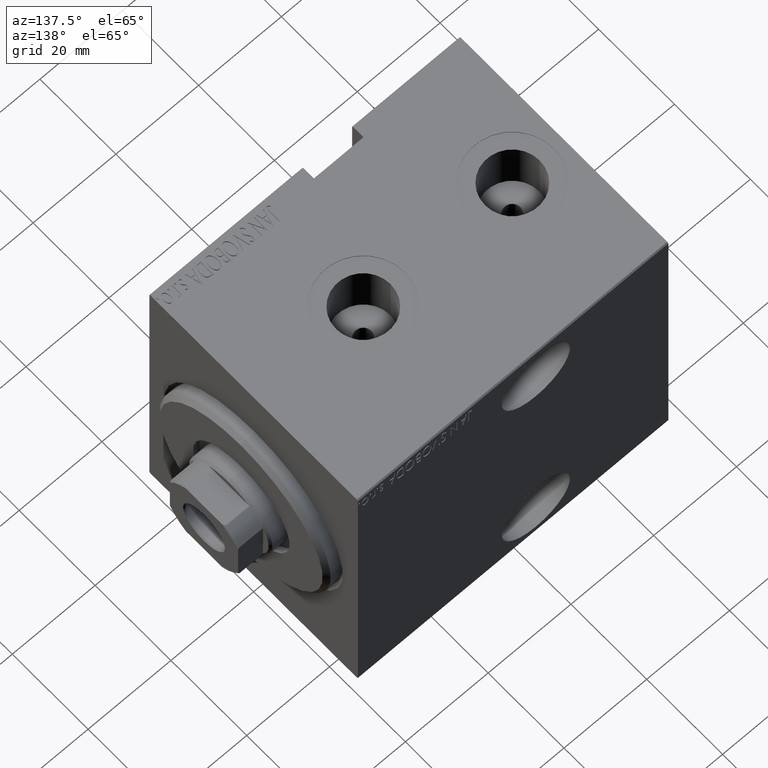
[diagram: clean part render]
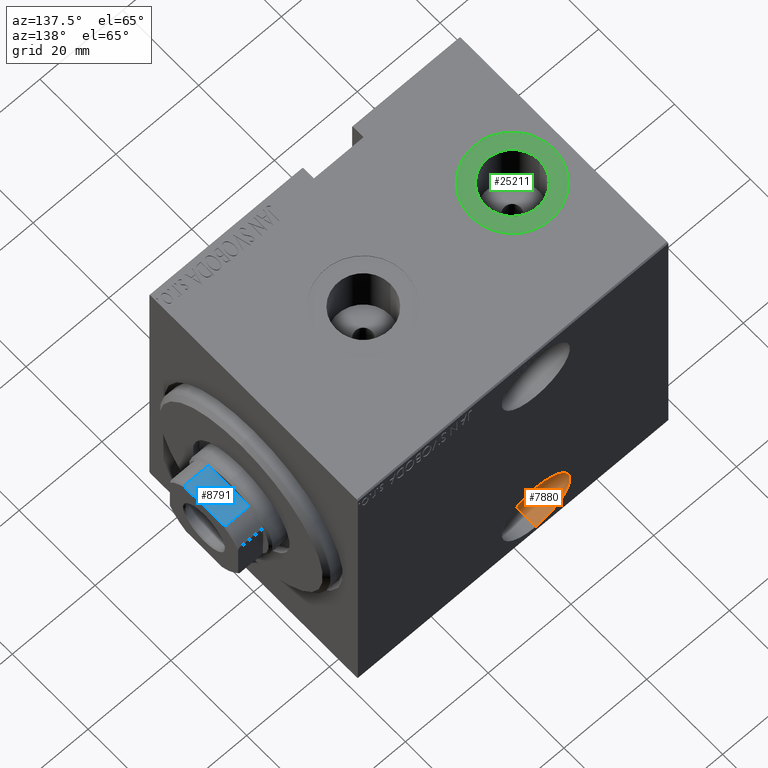
[diagram: same view with three faces highlighted in distinct colors, each labeled with its STEP entity id]
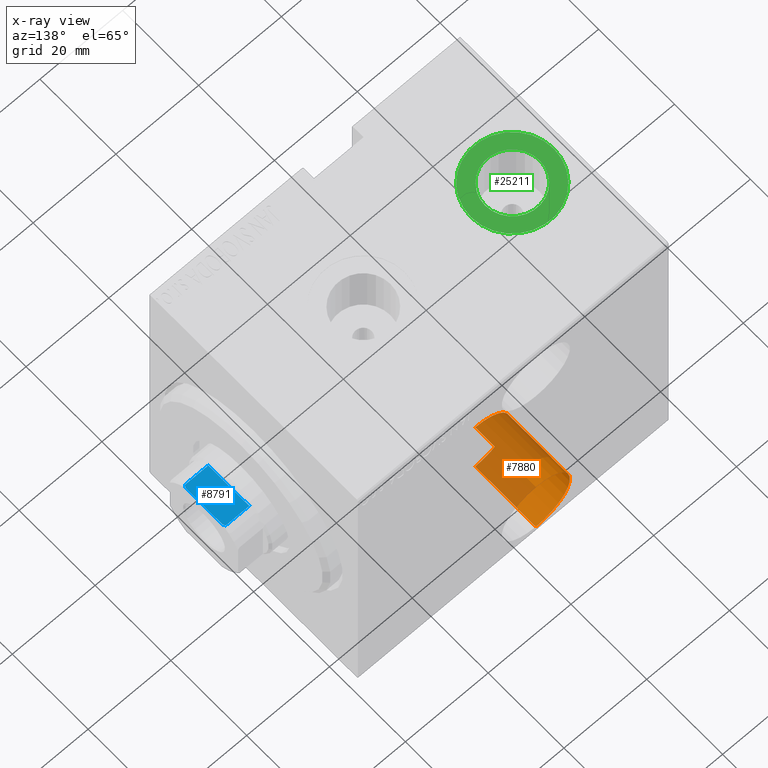
[diagram: x-ray of the same camera — body ghosted, the three highlighted faces saturated]
A machine part, auxiliary view with three faces highlighted in distinct colors.
The next image is the same camera in x-ray (body ghosted, the three faces saturated) — at least one of them is partly hidden behind the body in this view.
Their STEP definitions:

[orange] entity #7880 — the highlighted cylindrical surface (partial cylindrical patch) has radius 8.25 mm, axis along (0, 1, 0).
#1098 = ORIENTED_EDGE ( 'NONE', *, *, #14911, .F. ) ;
#3000 = VECTOR ( 'NONE', #38851, 1000.000000000000000 ) ;
#3109 = CIRCLE ( 'NONE', #18756, 8.250000000000000000 ) ;
#7880 = ADVANCED_FACE ( 'NONE', ( #10515 ), #40745, .F. ) ;
#8385 = EDGE_CURVE ( 'NONE', #11642, #35558, #11952, .T. ) ;
#10515 = FACE_OUTER_BOUND ( 'NONE', #24386, .T. ) ;
#11642 = VERTEX_POINT ( 'NONE', #36833 ) ;
#11952 = LINE ( 'NONE', #25294, #3000 ) ;
#12257 = AXIS2_PLACEMENT_3D ( 'NONE', #24076, #33868, #27195 ) ;
#14911 = EDGE_CURVE ( 'NONE', #28737, #11642, #3109, .T. ) ;
#16065 = EDGE_CURVE ( 'NONE', #31555, #35558, #30850, .T. ) ;
#16748 = DIRECTION ( 'NONE',  ( 0.000000000000000000, -1.000000000000000000, 1.963837897332234442E-16 ) ) ;
#18170 = VECTOR ( 'NONE', #31043, 1000.000000000000000 ) ;
#18756 = AXIS2_PLACEMENT_3D ( 'NONE', #37632, #16748, #30749 ) ;
#19279 = ORIENTED_EDGE ( 'NONE', *, *, #22875, .T. ) ;
#19624 = CARTESIAN_POINT ( 'NONE',  ( 43.00000000000001421, -27.50000000000000711, -27.50000000000000000 ) ) ;
#22875 = EDGE_CURVE ( 'NONE', #28737, #31555, #24144, .T. ) ;
#24076 = CARTESIAN_POINT ( 'NONE',  ( 43.00000000000001421, -11.50000000000000711, -27.50000000000000355 ) ) ;
#24144 = LINE ( 'NONE', #30163, #18170 ) ;
#24386 = EDGE_LOOP ( 'NONE', ( #34694, #1098, #19279, #31024 ) ) ;
#25033 = DIRECTION ( 'NONE',  ( 0.000000000000000000, -1.000000000000000000, 1.963837897332234442E-16 ) ) ;
#25294 = CARTESIAN_POINT ( 'NONE',  ( 43.00000000000001421, -11.50000000000000533, -19.25000000000000000 ) ) ;
#27195 = DIRECTION ( 'NONE',  ( 0.000000000000000000, -2.102695122396129916E-16, -1.000000000000000000 ) ) ;
#27531 = CARTESIAN_POINT ( 'NONE',  ( 43.00000000000001421, -27.50000000000000711, -19.24999999999999645 ) ) ;
#28737 = VERTEX_POINT ( 'NONE', #32555 ) ;
#29434 = AXIS2_PLACEMENT_3D ( 'NONE', #19624, #25033, #29614 ) ;
#29614 = DIRECTION ( 'NONE',  ( 0.000000000000000000, 0.000000000000000000, -1.000000000000000000 ) ) ;
#30163 = CARTESIAN_POINT ( 'NONE',  ( 43.00000000000001421, -11.50000000000000888, -35.75000000000000711 ) ) ;
#30749 = DIRECTION ( 'NONE',  ( 0.000000000000000000, -2.102695122396129916E-16, -1.000000000000000000 ) ) ;
#30850 = CIRCLE ( 'NONE', #29434, 8.250000000000003553 ) ;
#31024 = ORIENTED_EDGE ( 'NONE', *, *, #16065, .T. ) ;
#31043 = DIRECTION ( 'NONE',  ( -0.000000000000000000, -1.000000000000000000, 1.963837897332234442E-16 ) ) ;
#31555 = VERTEX_POINT ( 'NONE', #39723 ) ;
#32555 = CARTESIAN_POINT ( 'NONE',  ( 43.00000000000001421, -11.50000000000000888, -35.75000000000000711 ) ) ;
#33868 = DIRECTION ( 'NONE',  ( -0.000000000000000000, -1.000000000000000000, 1.963837897332234442E-16 ) ) ;
#34694 = ORIENTED_EDGE ( 'NONE', *, *, #8385, .F. ) ;
#35558 = VERTEX_POINT ( 'NONE', #27531 ) ;
#36833 = CARTESIAN_POINT ( 'NONE',  ( 43.00000000000001421, -11.50000000000000533, -19.25000000000000000 ) ) ;
#37632 = CARTESIAN_POINT ( 'NONE',  ( 43.00000000000001421, -11.50000000000000711, -27.50000000000000355 ) ) ;
#38851 = DIRECTION ( 'NONE',  ( -0.000000000000000000, -1.000000000000000000, 1.963837897332234442E-16 ) ) ;
#39723 = CARTESIAN_POINT ( 'NONE',  ( 43.00000000000001421, -27.50000000000000711, -35.75000000000000711 ) ) ;
#40745 = CYLINDRICAL_SURFACE ( 'NONE', #12257, 8.250000000000000000 ) ;

[blue] entity #8791 — the highlighted planar face has unit normal (-0, 0, -1).
#2498 = CARTESIAN_POINT ( 'NONE',  ( -9.000000000000001776, 4.799999999999986500, 77.00000000000001421 ) ) ;
#2603 = CARTESIAN_POINT ( 'NONE',  ( -8.999999999999998224, 5.408326913195988794, -0.001000000000001000089 ) ) ;
#2637 = CARTESIAN_POINT ( 'NONE',  ( -8.999999999999998224, -5.004607318780305292, 76.90371420292693472 ) ) ;
#3481 = CARTESIAN_POINT ( 'NONE',  ( -9.000000000000000000, -5.408326913195987018, 76.70000000000001705 ) ) ;
#5488 = CARTESIAN_POINT ( 'NONE',  ( -9.000000000000001776, 4.799999999999986500, 77.00000000000001421 ) ) ;
#6078 = ORIENTED_EDGE ( 'NONE', *, *, #27147, .F. ) ;
#6582 = AXIS2_PLACEMENT_3D ( 'NONE', #20990, #24319, #41856 ) ;
#7080 = VERTEX_POINT ( 'NONE', #20474 ) ;
#7875 = DIRECTION ( 'NONE',  ( 1.927470528863119049E-16, -1.000000000000000000, 0.000000000000000000 ) ) ;
#8791 = ADVANCED_FACE ( 'NONE', ( #30321 ), #13652, .F. ) ;
#9965 = ORIENTED_EDGE ( 'NONE', *, *, #15763, .F. ) ;
#11475 = CARTESIAN_POINT ( 'NONE',  ( -8.999999999999998224, -4.799999999999999822, 77.00000000000001421 ) ) ;
#11632 = DIRECTION ( 'NONE',  ( -0.000000000000000000, -0.000000000000000000, 1.000000000000000000 ) ) ;
#12555 = VERTEX_POINT ( 'NONE', #11475 ) ;
#13652 = PLANE ( 'NONE',  #6582 ) ;
#14295 = ORIENTED_EDGE ( 'NONE', *, *, #25253, .T. ) ;
#15174 = B_SPLINE_CURVE_WITH_KNOTS ( 'NONE', 3,
 ( #3481, #33746, #2637, #29973 ),
 .UNSPECIFIED., .F., .F.,
 ( 4, 4 ),
 ( 0.000000000000000000, 0.0006782784334759247918 ),
 .UNSPECIFIED. ) ;
#15763 = EDGE_CURVE ( 'NONE', #34428, #28055, #30362, .T. ) ;
#16059 = CARTESIAN_POINT ( 'NONE',  ( -9.000000000000001776, 5.207299490555469035, 76.80354495430067630 ) ) ;
#16163 = DIRECTION ( 'NONE',  ( -0.000000000000000000, -0.000000000000000000, 1.000000000000000000 ) ) ;
#16870 = ORIENTED_EDGE ( 'NONE', *, *, #32974, .T. ) ;
#17220 = LINE ( 'NONE', #24990, #23358 ) ;
#18966 = VECTOR ( 'NONE', #41859, 1000.000000000000000 ) ;
#19625 = CARTESIAN_POINT ( 'NONE',  ( -9.000000000000001776, 5.004607318780292857, 76.90371420292692051 ) ) ;
#20474 = CARTESIAN_POINT ( 'NONE',  ( -9.000000000000000000, -5.408326913195987018, 76.70000000000001705 ) ) ;
#20937 = VECTOR ( 'NONE', #16163, 1000.000000000000000 ) ;
#20990 = CARTESIAN_POINT ( 'NONE',  ( -9.000000000000001776, 8.999999999999998224, 77.00000000000001421 ) ) ;
#21240 = EDGE_CURVE ( 'NONE', #34428, #31148, #38552, .T. ) ;
#23358 = VECTOR ( 'NONE', #11632, 1000.000000000000000 ) ;
#23458 = EDGE_LOOP ( 'NONE', ( #16870, #31162, #6078, #14295, #9965, #39176 ) ) ;
#24319 = DIRECTION ( 'NONE',  ( 1.000000000000000000, 1.927470528863119049E-16, -0.000000000000000000 ) ) ;
#24990 = CARTESIAN_POINT ( 'NONE',  ( -9.000000000000000000, -5.408326913195987018, -0.001000000000001000089 ) ) ;
#25253 = EDGE_CURVE ( 'NONE', #42938, #28055, #38402, .T. ) ;
#27147 = EDGE_CURVE ( 'NONE', #42938, #12555, #38312, .T. ) ;
#28055 = VERTEX_POINT ( 'NONE', #29969 ) ;
#28112 = CARTESIAN_POINT ( 'NONE',  ( -9.000000000000001776, 8.999999999999998224, 71.00000000000001421 ) ) ;
#29969 = CARTESIAN_POINT ( 'NONE',  ( -8.999999999999998224, 5.408326913195988794, 76.70000000000000284 ) ) ;
#29973 = CARTESIAN_POINT ( 'NONE',  ( -8.999999999999998224, -4.799999999999999822, 77.00000000000001421 ) ) ;
#30321 = FACE_OUTER_BOUND ( 'NONE', #23458, .T. ) ;
#30362 = LINE ( 'NONE', #2603, #20937 ) ;
#31148 = VERTEX_POINT ( 'NONE', #34268 ) ;
#31162 = ORIENTED_EDGE ( 'NONE', *, *, #33791, .T. ) ;
#32974 = EDGE_CURVE ( 'NONE', #31148, #7080, #17220, .T. ) ;
#33746 = CARTESIAN_POINT ( 'NONE',  ( -9.000000000000000000, -5.207299490555472588, 76.80354495430069051 ) ) ;
#33791 = EDGE_CURVE ( 'NONE', #7080, #12555, #15174, .T. ) ;
#34268 = CARTESIAN_POINT ( 'NONE',  ( -9.000000000000000000, -5.408326913195987018, 71.00000000000002842 ) ) ;
#34428 = VERTEX_POINT ( 'NONE', #34915 ) ;
#34915 = CARTESIAN_POINT ( 'NONE',  ( -8.999999999999998224, 5.408326913195986130, 71.00000000000002842 ) ) ;
#38312 = LINE ( 'NONE', #42292, #18966 ) ;
#38402 = B_SPLINE_CURVE_WITH_KNOTS ( 'NONE', 3,
 ( #2498, #19625, #16059, #39831 ),
 .UNSPECIFIED., .F., .F.,
 ( 4, 4 ),
 ( 0.000000000000000000, 0.0006782784334759449580 ),
 .UNSPECIFIED. ) ;
#38552 = LINE ( 'NONE', #28112, #43036 ) ;
#39176 = ORIENTED_EDGE ( 'NONE', *, *, #21240, .T. ) ;
#39831 = CARTESIAN_POINT ( 'NONE',  ( -8.999999999999998224, 5.408326913195988794, 76.70000000000000284 ) ) ;
#41856 = DIRECTION ( 'NONE',  ( -1.927470528863119049E-16, 1.000000000000000000, 0.000000000000000000 ) ) ;
#41859 = DIRECTION ( 'NONE',  ( 1.927470528863119049E-16, -1.000000000000000000, 0.000000000000000000 ) ) ;
#42292 = CARTESIAN_POINT ( 'NONE',  ( -9.000000000000001776, 8.999999999999998224, 77.00000000000001421 ) ) ;
#42938 = VERTEX_POINT ( 'NONE', #5488 ) ;
#43036 = VECTOR ( 'NONE', #7875, 1000.000000000000000 ) ;

[green] entity #25211 — the highlighted planar face has unit normal (0, 0, 1).
#1245 = EDGE_CURVE ( 'NONE', #13141, #1345, #14283, .T. ) ;
#1280 = CARTESIAN_POINT ( 'NONE',  ( 62.49999999999999289, -9.462128050782584868E-15, 37.39999999999999858 ) ) ;
#1345 = VERTEX_POINT ( 'NONE', #5116 ) ;
#4753 = ORIENTED_EDGE ( 'NONE', *, *, #11255, .F. ) ;
#5116 = CARTESIAN_POINT ( 'NONE',  ( 72.50000000000000000, -9.462128050782584868E-15, 37.39999999999999858 ) ) ;
#6255 = DIRECTION ( 'NONE',  ( 0.000000000000000000, 0.000000000000000000, 1.000000000000000000 ) ) ;
#7239 = DIRECTION ( 'NONE',  ( 1.000000000000000000, 0.000000000000000000, 0.000000000000000000 ) ) ;
#7773 = EDGE_LOOP ( 'NONE', ( #31654, #4753 ) ) ;
#7801 = CARTESIAN_POINT ( 'NONE',  ( 62.49999999999999289, -9.462128050782584868E-15, 37.39999999999999858 ) ) ;
#8861 = DIRECTION ( 'NONE',  ( 0.000000000000000000, 0.000000000000000000, 1.000000000000000000 ) ) ;
#8948 = FACE_OUTER_BOUND ( 'NONE', #12678, .T. ) ;
#11255 = EDGE_CURVE ( 'NONE', #23086, #19859, #15281, .T. ) ;
#11977 = CARTESIAN_POINT ( 'NONE',  ( 69.07999999999999829, -9.462128050782584868E-15, 37.39999999999999858 ) ) ;
#12678 = EDGE_LOOP ( 'NONE', ( #24040, #18123 ) ) ;
#13141 = VERTEX_POINT ( 'NONE', #42859 ) ;
#14283 = CIRCLE ( 'NONE', #19971, 10.00000000000000178 ) ;
#15281 = CIRCLE ( 'NONE', #28065, 6.580000000000009841 ) ;
#16272 = PLANE ( 'NONE',  #23871 ) ;
#18123 = ORIENTED_EDGE ( 'NONE', *, *, #1245, .T. ) ;
#18476 = DIRECTION ( 'NONE',  ( 1.000000000000000000, 0.000000000000000000, 0.000000000000000000 ) ) ;
#18882 = CARTESIAN_POINT ( 'NONE',  ( 62.49999999999999289, -9.462128050782584868E-15, 37.39999999999999858 ) ) ;
#19859 = VERTEX_POINT ( 'NONE', #11977 ) ;
#19971 = AXIS2_PLACEMENT_3D ( 'NONE', #7801, #34713, #18476 ) ;
#20057 = FACE_BOUND ( 'NONE', #7773, .T. ) ;
#20336 = CARTESIAN_POINT ( 'NONE',  ( 55.91999999999998039, -8.656310456943625827E-15, 37.39999999999999858 ) ) ;
#22516 = DIRECTION ( 'NONE',  ( 1.000000000000000000, 0.000000000000000000, -0.000000000000000000 ) ) ;
#23086 = VERTEX_POINT ( 'NONE', #20336 ) ;
#23871 = AXIS2_PLACEMENT_3D ( 'NONE', #33608, #6255, #22516 ) ;
#23917 = CARTESIAN_POINT ( 'NONE',  ( 62.49999999999999289, -9.462128050782584868E-15, 37.39999999999999858 ) ) ;
#24040 = ORIENTED_EDGE ( 'NONE', *, *, #40449, .T. ) ;
#25086 = DIRECTION ( 'NONE',  ( 1.000000000000000000, 0.000000000000000000, 0.000000000000000000 ) ) ;
#25211 = ADVANCED_FACE ( 'NONE', ( #20057, #8948 ), #16272, .T. ) ;
#25998 = EDGE_CURVE ( 'NONE', #19859, #23086, #40204, .T. ) ;
#28065 = AXIS2_PLACEMENT_3D ( 'NONE', #18882, #8861, #42201 ) ;
#31654 = ORIENTED_EDGE ( 'NONE', *, *, #25998, .F. ) ;
#33608 = CARTESIAN_POINT ( 'NONE',  ( 62.49999999999999289, -9.462128050782584868E-15, 37.39999999999999858 ) ) ;
#34713 = DIRECTION ( 'NONE',  ( 0.000000000000000000, 0.000000000000000000, 1.000000000000000000 ) ) ;
#37629 = AXIS2_PLACEMENT_3D ( 'NONE', #1280, #40863, #25086 ) ;
#37690 = DIRECTION ( 'NONE',  ( 0.000000000000000000, 0.000000000000000000, 1.000000000000000000 ) ) ;
#38824 = AXIS2_PLACEMENT_3D ( 'NONE', #23917, #37690, #7239 ) ;
#40204 = CIRCLE ( 'NONE', #38824, 6.580000000000009841 ) ;
#40449 = EDGE_CURVE ( 'NONE', #1345, #13141, #42603, .T. ) ;
#40863 = DIRECTION ( 'NONE',  ( 0.000000000000000000, 0.000000000000000000, 1.000000000000000000 ) ) ;
#42201 = DIRECTION ( 'NONE',  ( 1.000000000000000000, 0.000000000000000000, 0.000000000000000000 ) ) ;
#42603 = CIRCLE ( 'NONE', #37629, 10.00000000000000178 ) ;
#42859 = CARTESIAN_POINT ( 'NONE',  ( 52.49999999999999289, -8.237481251635231809E-15, 37.39999999999999858 ) ) ;